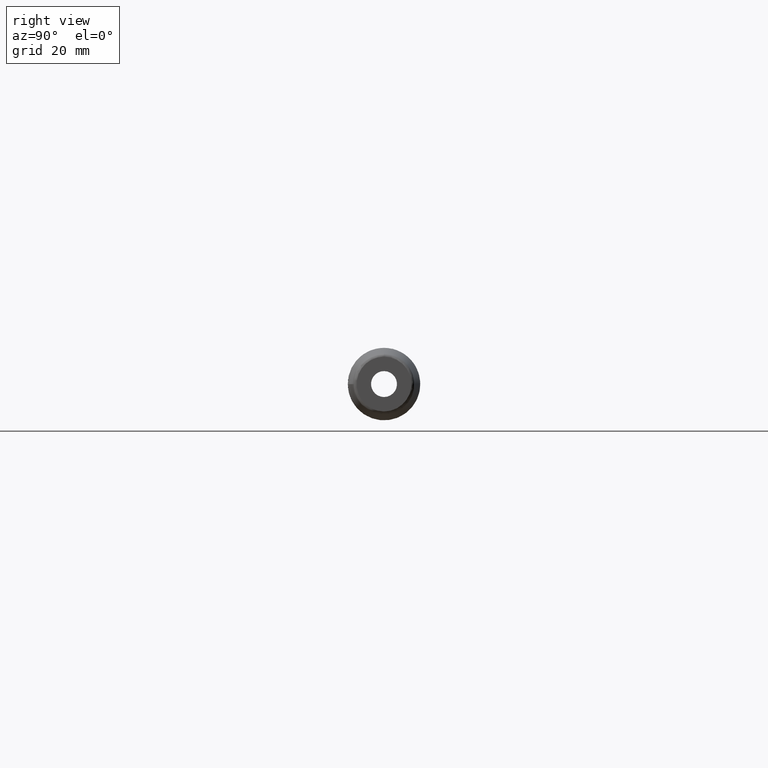
[diagram: clean part render]
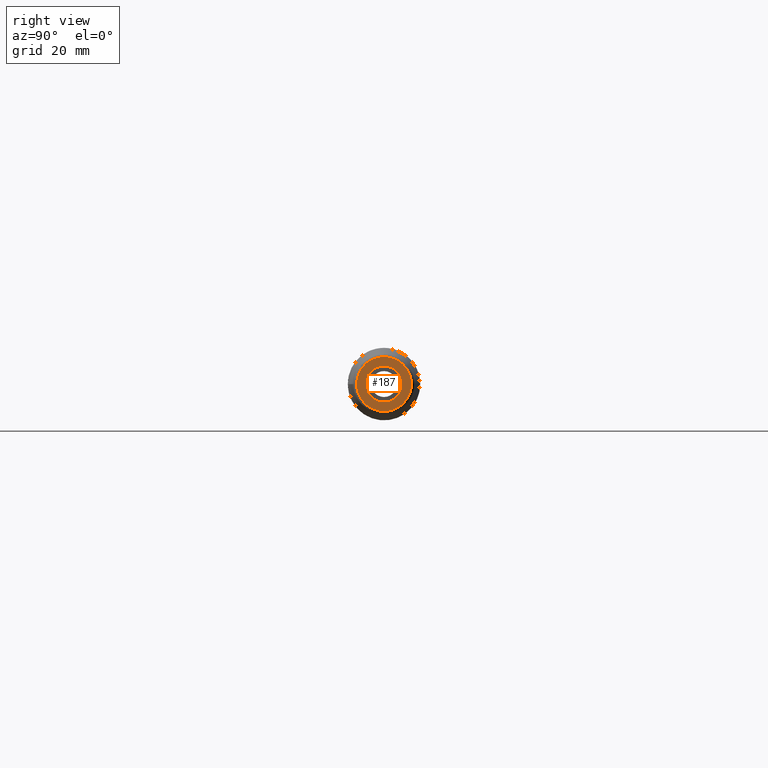
[diagram: same view with one face highlighted and labeled with its STEP entity id]
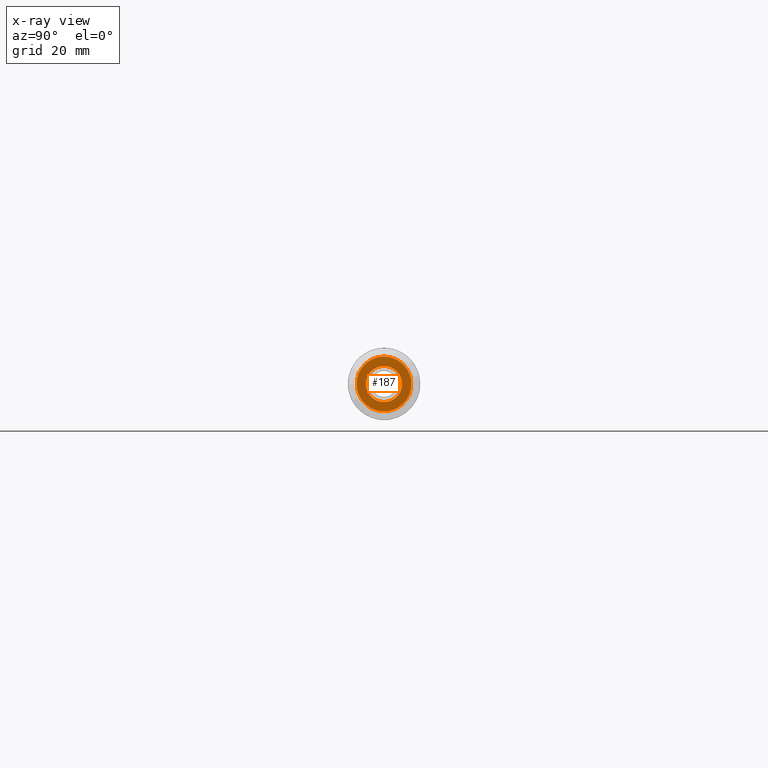
[diagram: x-ray of the same camera — body ghosted, the highlighted face saturated]
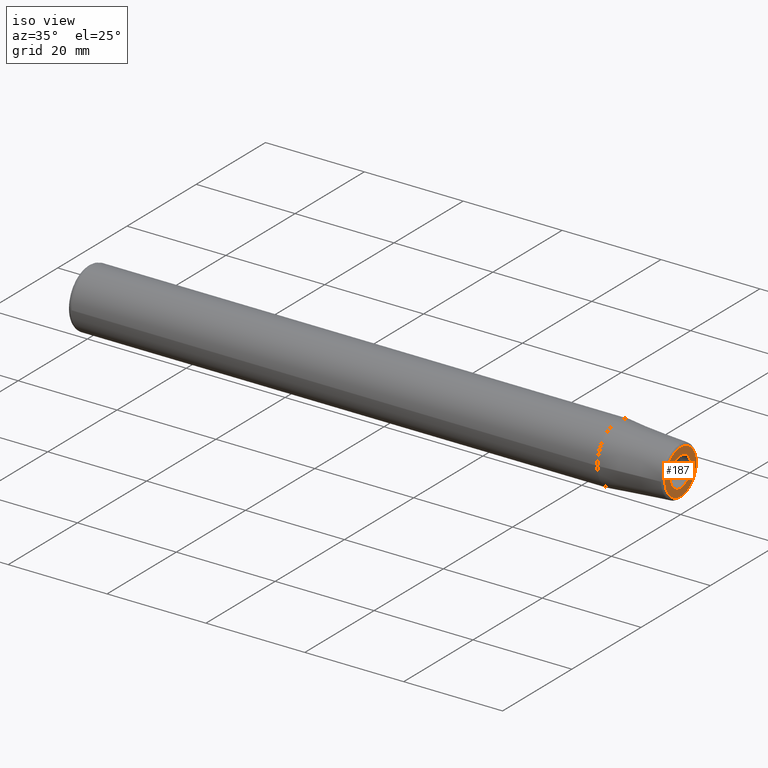
[diagram: same view with one face highlighted and labeled with its STEP entity id]
A machine part, right view. The second image highlights one B-rep face of the part: STEP entity #187.
The next image is the same camera in x-ray: the body ghosted, the highlighted face saturated — about 0% of this face is hidden behind the body in this view.
A second angle (iso view) of the same face is appended — the face is thin or edge-on in the first view.
In plain terms, the highlighted planar face has unit normal (1, 0, 0).
Its self-contained STEP definition (entity closure, byte-faithful):
#20=FACE_BOUND('',#60,.T.);
#24=PLANE('',#228);
#46=FACE_OUTER_BOUND('',#59,.T.);
#59=EDGE_LOOP('',(#143));
#60=EDGE_LOOP('',(#144));
#74=CIRCLE('',#222,4.5378047541709);
#79=CIRCLE('',#229,3.);
#92=VERTEX_POINT('',#325);
#96=VERTEX_POINT('',#337);
#108=EDGE_CURVE('',#92,#92,#74,.T.);
#114=EDGE_CURVE('',#96,#96,#79,.T.);
#143=ORIENTED_EDGE('',*,*,#108,.F.);
#144=ORIENTED_EDGE('',*,*,#114,.F.);
#187=ADVANCED_FACE('',(#46,#20),#24,.T.);
#222=AXIS2_PLACEMENT_3D('',#326,#256,#257);
#228=AXIS2_PLACEMENT_3D('',#336,#269,#270);
#229=AXIS2_PLACEMENT_3D('',#338,#271,#272);
#256=DIRECTION('center_axis',(-1.,0.,0.));
#257=DIRECTION('ref_axis',(0.,-1.,1.83697019872103E-16));
#269=DIRECTION('center_axis',(1.,0.,0.));
#270=DIRECTION('ref_axis',(0.,0.,-1.));
#271=DIRECTION('center_axis',(1.,0.,0.));
#272=DIRECTION('ref_axis',(0.,0.,-1.));
#325=CARTESIAN_POINT('',(120.,-5.55720806735103E-16,4.5378047541709));
#326=CARTESIAN_POINT('Origin',(120.,0.,0.));
#336=CARTESIAN_POINT('Origin',(120.,3.,0.));
#337=CARTESIAN_POINT('',(120.,-3.,-3.67394039744205E-16));
#338=CARTESIAN_POINT('Origin',(120.,0.,0.));